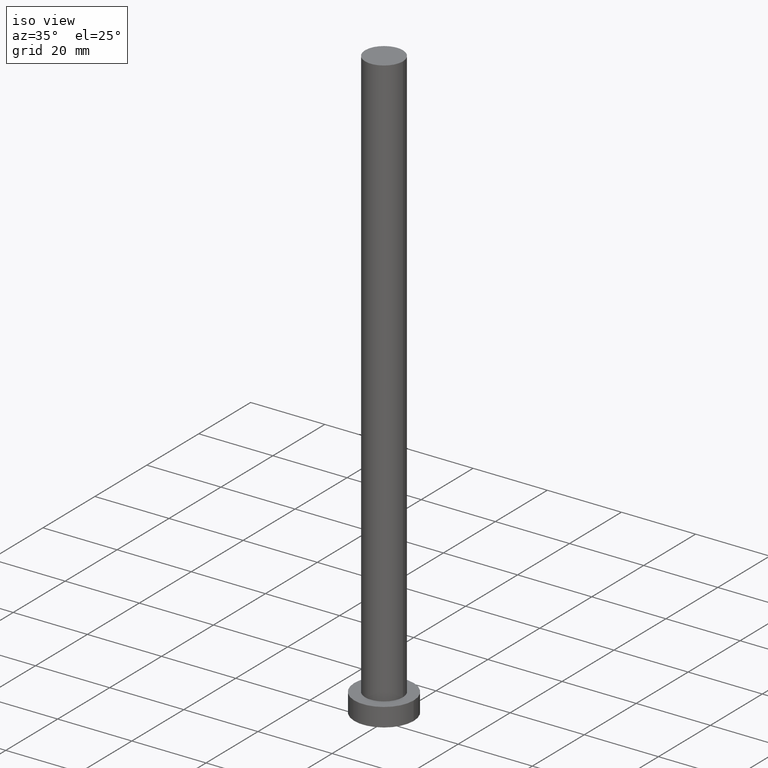
[diagram: clean part render]
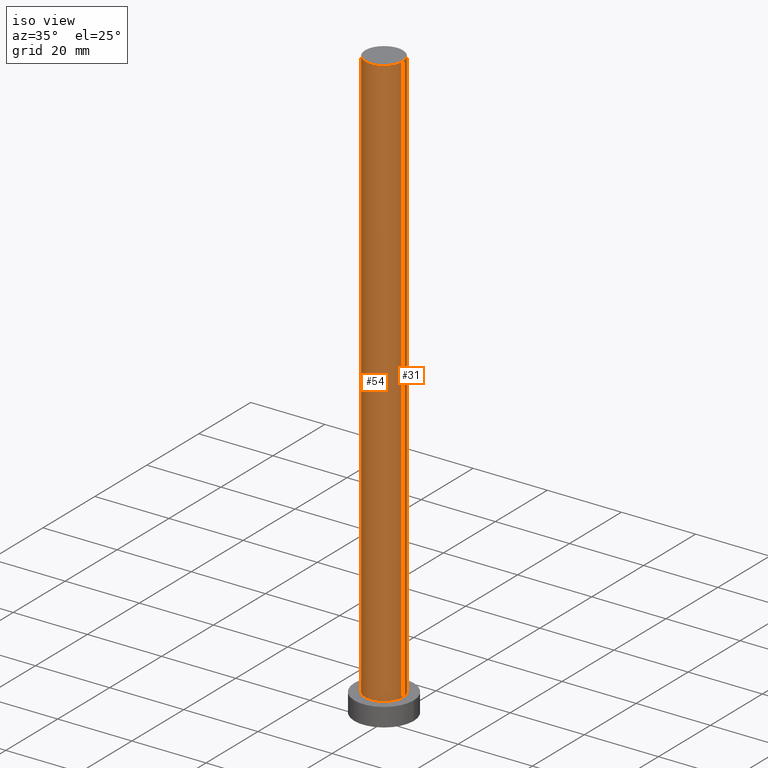
[diagram: same view with one multi-face feature highlighted, each face labeled with its STEP entity id]
A machine part, iso view. The highlighted faces form ONE feature: a constant-radius fillet chain: 2 tangent blend faces with common blend radius 5.1 mm. The faces share edges in the B-rep.
Their STEP definitions:
[1] entity #31 (Cylinder):
#1 = DIRECTION ( 'NONE',  ( -0.000000000000000000, -0.000000000000000000, -1.000000000000000000 ) ) ;
#2 = CARTESIAN_POINT ( 'NONE',  ( 5.100000000000001421, 6.245698675651502811E-16, 160.0000000000000000 ) ) ;
#7 = CARTESIAN_POINT ( 'NONE',  ( 0.000000000000000000, 0.000000000000000000, 160.0000000000000000 ) ) ;
#15 = DIRECTION ( 'NONE',  ( 1.000000000000000000, 0.000000000000000000, 0.000000000000000000 ) ) ;
#18 = VERTEX_POINT ( 'NONE', #121 ) ;
#19 = VERTEX_POINT ( 'NONE', #21 ) ;
#21 = CARTESIAN_POINT ( 'NONE',  ( -5.100000000000001421, 0.000000000000000000, 160.0000000000000000 ) ) ;
#23 = CARTESIAN_POINT ( 'NONE',  ( 0.000000000000000000, 0.000000000000000000, 160.0000000000000000 ) ) ;
#31 = ADVANCED_FACE ( 'NONE', ( #199 ), #122, .T. ) ;
#39 = EDGE_LOOP ( 'NONE', ( #119, #157, #133, #140 ) ) ;
#43 = DIRECTION ( 'NONE',  ( -0.000000000000000000, -0.000000000000000000, -1.000000000000000000 ) ) ;
#45 = DIRECTION ( 'NONE',  ( -1.000000000000000000, 0.000000000000000000, 0.000000000000000000 ) ) ;
#48 = AXIS2_PLACEMENT_3D ( 'NONE', #65, #87, #83 ) ;
#56 = CIRCLE ( 'NONE', #91, 5.100000000000001421 ) ;
#59 = VERTEX_POINT ( 'NONE', #90 ) ;
#65 = CARTESIAN_POINT ( 'NONE',  ( 0.000000000000000000, 0.000000000000000000, 5.000000000000000000 ) ) ;
#67 = CARTESIAN_POINT ( 'NONE',  ( -5.100000000000001421, 0.000000000000000000, 5.000000000000000000 ) ) ;
#83 = DIRECTION ( 'NONE',  ( 1.000000000000000000, 0.000000000000000000, 0.000000000000000000 ) ) ;
#84 = VECTOR ( 'NONE', #43, 1000.000000000000000 ) ;
#87 = DIRECTION ( 'NONE',  ( 0.000000000000000000, 0.000000000000000000, 1.000000000000000000 ) ) ;
#90 = CARTESIAN_POINT ( 'NONE',  ( 5.100000000000001421, 6.245698675651502811E-16, 160.0000000000000000 ) ) ;
#91 = AXIS2_PLACEMENT_3D ( 'NONE', #7, #244, #15 ) ;
#98 = VERTEX_POINT ( 'NONE', #67 ) ;
#102 = LINE ( 'NONE', #180, #84 ) ;
#105 = EDGE_CURVE ( 'NONE', #18, #98, #161, .T. ) ;
#117 = VECTOR ( 'NONE', #163, 1000.000000000000000 ) ;
#119 = ORIENTED_EDGE ( 'NONE', *, *, #248, .F. ) ;
#120 = AXIS2_PLACEMENT_3D ( 'NONE', #23, #1, #45 ) ;
#121 = CARTESIAN_POINT ( 'NONE',  ( 5.100000000000001421, 6.245698675651502811E-16, 5.000000000000000000 ) ) ;
#122 = CYLINDRICAL_SURFACE ( 'NONE', #120, 5.100000000000001421 ) ;
#124 = EDGE_CURVE ( 'NONE', #19, #98, #102, .T. ) ;
#133 = ORIENTED_EDGE ( 'NONE', *, *, #105, .T. ) ;
#140 = ORIENTED_EDGE ( 'NONE', *, *, #124, .F. ) ;
#157 = ORIENTED_EDGE ( 'NONE', *, *, #176, .T. ) ;
#161 = CIRCLE ( 'NONE', #48, 5.100000000000001421 ) ;
#163 = DIRECTION ( 'NONE',  ( -0.000000000000000000, -0.000000000000000000, -1.000000000000000000 ) ) ;
#176 = EDGE_CURVE ( 'NONE', #59, #18, #181, .T. ) ;
#180 = CARTESIAN_POINT ( 'NONE',  ( -5.100000000000001421, 0.000000000000000000, 160.0000000000000000 ) ) ;
#181 = LINE ( 'NONE', #2, #117 ) ;
#199 = FACE_OUTER_BOUND ( 'NONE', #39, .T. ) ;
#244 = DIRECTION ( 'NONE',  ( 0.000000000000000000, 0.000000000000000000, 1.000000000000000000 ) ) ;
#248 = EDGE_CURVE ( 'NONE', #59, #19, #56, .T. ) ;
[2] entity #54 (Cylinder):
#2 = CARTESIAN_POINT ( 'NONE',  ( 5.100000000000001421, 6.245698675651502811E-16, 160.0000000000000000 ) ) ;
#10 = AXIS2_PLACEMENT_3D ( 'NONE', #78, #214, #57 ) ;
#17 = EDGE_CURVE ( 'NONE', #19, #59, #125, .T. ) ;
#18 = VERTEX_POINT ( 'NONE', #121 ) ;
#19 = VERTEX_POINT ( 'NONE', #21 ) ;
#21 = CARTESIAN_POINT ( 'NONE',  ( -5.100000000000001421, 0.000000000000000000, 160.0000000000000000 ) ) ;
#22 = CARTESIAN_POINT ( 'NONE',  ( 0.000000000000000000, 0.000000000000000000, 160.0000000000000000 ) ) ;
#28 = AXIS2_PLACEMENT_3D ( 'NONE', #146, #196, #217 ) ;
#36 = ORIENTED_EDGE ( 'NONE', *, *, #17, .F. ) ;
#40 = AXIS2_PLACEMENT_3D ( 'NONE', #22, #223, #184 ) ;
#43 = DIRECTION ( 'NONE',  ( -0.000000000000000000, -0.000000000000000000, -1.000000000000000000 ) ) ;
#54 = ADVANCED_FACE ( 'NONE', ( #141 ), #195, .T. ) ;
#57 = DIRECTION ( 'NONE',  ( 1.000000000000000000, 0.000000000000000000, 0.000000000000000000 ) ) ;
#59 = VERTEX_POINT ( 'NONE', #90 ) ;
#67 = CARTESIAN_POINT ( 'NONE',  ( -5.100000000000001421, 0.000000000000000000, 5.000000000000000000 ) ) ;
#78 = CARTESIAN_POINT ( 'NONE',  ( 0.000000000000000000, 0.000000000000000000, 160.0000000000000000 ) ) ;
#84 = VECTOR ( 'NONE', #43, 1000.000000000000000 ) ;
#90 = CARTESIAN_POINT ( 'NONE',  ( 5.100000000000001421, 6.245698675651502811E-16, 160.0000000000000000 ) ) ;
#98 = VERTEX_POINT ( 'NONE', #67 ) ;
#100 = EDGE_CURVE ( 'NONE', #98, #18, #249, .T. ) ;
#101 = ORIENTED_EDGE ( 'NONE', *, *, #100, .T. ) ;
#102 = LINE ( 'NONE', #180, #84 ) ;
#117 = VECTOR ( 'NONE', #163, 1000.000000000000000 ) ;
#118 = ORIENTED_EDGE ( 'NONE', *, *, #124, .T. ) ;
#121 = CARTESIAN_POINT ( 'NONE',  ( 5.100000000000001421, 6.245698675651502811E-16, 5.000000000000000000 ) ) ;
#124 = EDGE_CURVE ( 'NONE', #19, #98, #102, .T. ) ;
#125 = CIRCLE ( 'NONE', #10, 5.100000000000001421 ) ;
#141 = FACE_OUTER_BOUND ( 'NONE', #177, .T. ) ;
#146 = CARTESIAN_POINT ( 'NONE',  ( 0.000000000000000000, 0.000000000000000000, 5.000000000000000000 ) ) ;
#163 = DIRECTION ( 'NONE',  ( -0.000000000000000000, -0.000000000000000000, -1.000000000000000000 ) ) ;
#176 = EDGE_CURVE ( 'NONE', #59, #18, #181, .T. ) ;
#177 = EDGE_LOOP ( 'NONE', ( #252, #36, #118, #101 ) ) ;
#180 = CARTESIAN_POINT ( 'NONE',  ( -5.100000000000001421, 0.000000000000000000, 160.0000000000000000 ) ) ;
#181 = LINE ( 'NONE', #2, #117 ) ;
#184 = DIRECTION ( 'NONE',  ( -1.000000000000000000, 0.000000000000000000, 0.000000000000000000 ) ) ;
#195 = CYLINDRICAL_SURFACE ( 'NONE', #40, 5.100000000000001421 ) ;
#196 = DIRECTION ( 'NONE',  ( 0.000000000000000000, 0.000000000000000000, 1.000000000000000000 ) ) ;
#214 = DIRECTION ( 'NONE',  ( 0.000000000000000000, 0.000000000000000000, 1.000000000000000000 ) ) ;
#217 = DIRECTION ( 'NONE',  ( 1.000000000000000000, 0.000000000000000000, 0.000000000000000000 ) ) ;
#223 = DIRECTION ( 'NONE',  ( -0.000000000000000000, -0.000000000000000000, -1.000000000000000000 ) ) ;
#249 = CIRCLE ( 'NONE', #28, 5.100000000000001421 ) ;
#252 = ORIENTED_EDGE ( 'NONE', *, *, #176, .F. ) ;